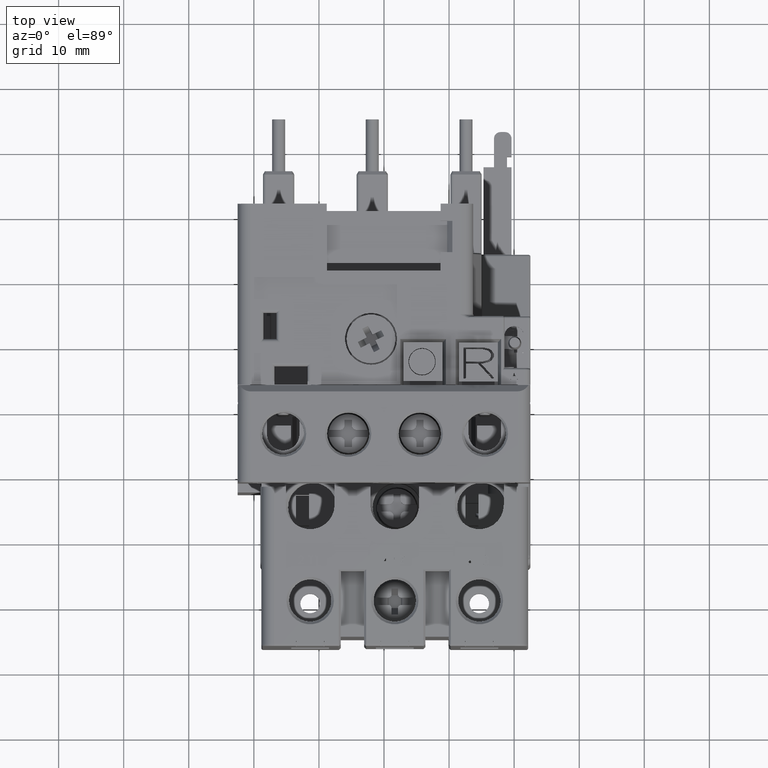
[diagram: clean part render]
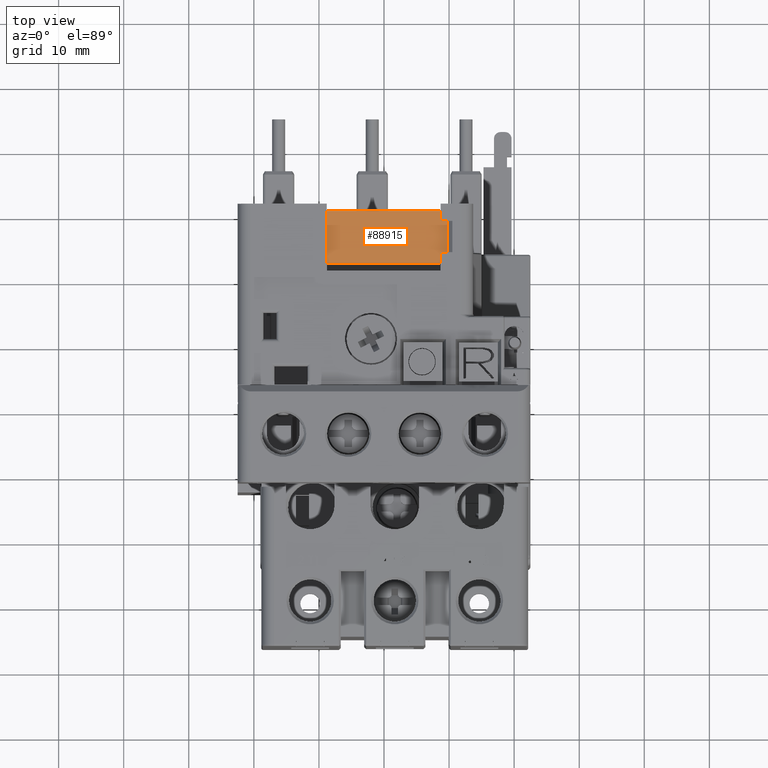
[diagram: same view with one face highlighted and labeled with its STEP entity id]
A machine part, top view. The second image highlights one B-rep face of the part: STEP entity #88915.
In plain terms, the highlighted planar face has unit normal (0, 0, 1).
Its self-contained STEP definition (entity closure, byte-faithful):
#29187=DIRECTION('',(0.E0,1.E0,0.E0));
#29188=VECTOR('',#29187,6.496062992126E-2);
#29189=CARTESIAN_POINT('',(3.425196850394E-1,1.271653543307E0,
-3.937007874016E-2));
#29190=LINE('',#29189,#29188);
#29223=DIRECTION('',(0.E0,1.E0,0.E0));
#29224=VECTOR('',#29223,6.102362204724E-2);
#29225=CARTESIAN_POINT('',(3.425196850394E-1,1.525590551181E0,
-3.937007874016E-2));
#29226=LINE('',#29225,#29224);
#29244=DIRECTION('',(1.E0,0.E0,0.E0));
#29245=VECTOR('',#29244,6.889763779528E-1);
#29246=CARTESIAN_POINT('',(-3.464566929134E-1,1.271653543307E0,
-3.937007874016E-2));
#29247=LINE('',#29246,#29245);
#29316=DIRECTION('',(0.E0,-1.E0,0.E0));
#29317=VECTOR('',#29316,3.149606299213E-1);
#29318=CARTESIAN_POINT('',(-3.464566929134E-1,1.586614173228E0,
-3.937007874016E-2));
#29319=LINE('',#29318,#29317);
#30538=DIRECTION('',(-1.E0,0.E0,0.E0));
#30539=VECTOR('',#30538,6.889763779528E-1);
#30540=CARTESIAN_POINT('',(3.425196850394E-1,1.586614173228E0,
-3.937007874016E-2));
#30541=LINE('',#30540,#30539);
#30552=DIRECTION('',(-1.E0,0.E0,0.E0));
#30553=VECTOR('',#30552,3.937007874016E-2);
#30554=CARTESIAN_POINT('',(3.818897637795E-1,1.525590551181E0,
-3.937007874016E-2));
#30555=LINE('',#30554,#30553);
#30580=DIRECTION('',(1.E0,0.E0,0.E0));
#30581=VECTOR('',#30580,3.937007874016E-2);
#30582=CARTESIAN_POINT('',(3.425196850394E-1,1.336614173228E0,
-3.937007874016E-2));
#30583=LINE('',#30582,#30581);
#30601=DIRECTION('',(0.E0,1.E0,0.E0));
#30602=VECTOR('',#30601,1.889763779528E-1);
#30603=CARTESIAN_POINT('',(3.818897637795E-1,1.336614173228E0,
-3.937007874016E-2));
#30604=LINE('',#30603,#30602);
#63708=CARTESIAN_POINT('',(3.425196850394E-1,1.271653543307E0,
-3.937007874016E-2));
#63710=VERTEX_POINT('',#63708);
#63711=CARTESIAN_POINT('',(3.425196850394E-1,1.336614173228E0,
-3.937007874016E-2));
#63712=VERTEX_POINT('',#63711);
#63715=CARTESIAN_POINT('',(3.425196850394E-1,1.525590551181E0,
-3.937007874016E-2));
#63716=VERTEX_POINT('',#63715);
#63717=CARTESIAN_POINT('',(3.425196850394E-1,1.586614173228E0,
-3.937007874016E-2));
#63718=VERTEX_POINT('',#63717);
#63723=CARTESIAN_POINT('',(-3.464566929134E-1,1.271653543307E0,
-3.937007874016E-2));
#63725=VERTEX_POINT('',#63723);
#63745=CARTESIAN_POINT('',(-3.464566929134E-1,1.586614173228E0,
-3.937007874016E-2));
#63746=VERTEX_POINT('',#63745);
#63931=CARTESIAN_POINT('',(3.818897637795E-1,1.525590551181E0,
-3.937007874016E-2));
#63932=VERTEX_POINT('',#63931);
#63933=CARTESIAN_POINT('',(3.818897637795E-1,1.336614173228E0,
-3.937007874016E-2));
#63934=VERTEX_POINT('',#63933);
#88897=CARTESIAN_POINT('',(-3.464566929134E-1,1.586614173228E0,
-3.937007874016E-2));
#88898=DIRECTION('',(0.E0,0.E0,1.E0));
#88899=DIRECTION('',(0.E0,-1.E0,0.E0));
#88900=AXIS2_PLACEMENT_3D('',#88897,#88898,#88899);
#88901=PLANE('',#88900);
#88902=ORIENTED_EDGE('',*,*,#88890,.F.);
#88903=ORIENTED_EDGE('',*,*,#87860,.F.);
#88905=ORIENTED_EDGE('',*,*,#88904,.F.);
#88907=ORIENTED_EDGE('',*,*,#88906,.F.);
#88909=ORIENTED_EDGE('',*,*,#88908,.F.);
#88910=ORIENTED_EDGE('',*,*,#87846,.F.);
#88911=ORIENTED_EDGE('',*,*,#87878,.F.);
#88912=ORIENTED_EDGE('',*,*,#87915,.F.);
#88913=EDGE_LOOP('',(#88902,#88903,#88905,#88907,#88909,#88910,#88911,#88912));
#88914=FACE_OUTER_BOUND('',#88913,.F.);
#87846=EDGE_CURVE('',#63710,#63712,#29190,.T.);
#87860=EDGE_CURVE('',#63716,#63718,#29226,.T.);
#87878=EDGE_CURVE('',#63725,#63710,#29247,.T.);
#87915=EDGE_CURVE('',#63746,#63725,#29319,.T.);
#88890=EDGE_CURVE('',#63718,#63746,#30541,.T.);
#88904=EDGE_CURVE('',#63932,#63716,#30555,.T.);
#88906=EDGE_CURVE('',#63934,#63932,#30604,.T.);
#88908=EDGE_CURVE('',#63712,#63934,#30583,.T.);
#88915=ADVANCED_FACE('',(#88914),#88901,.T.);